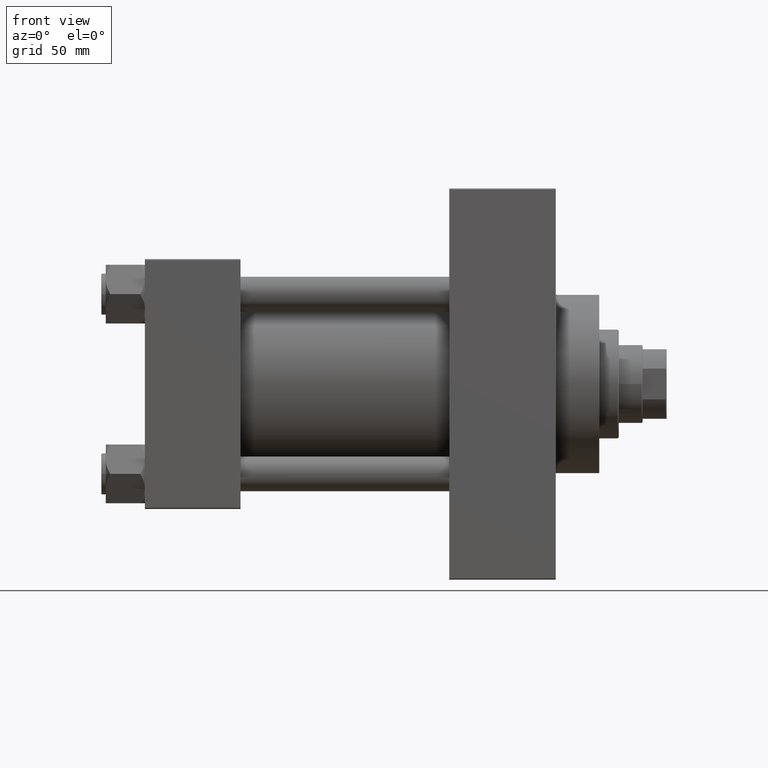
[diagram: clean part render]
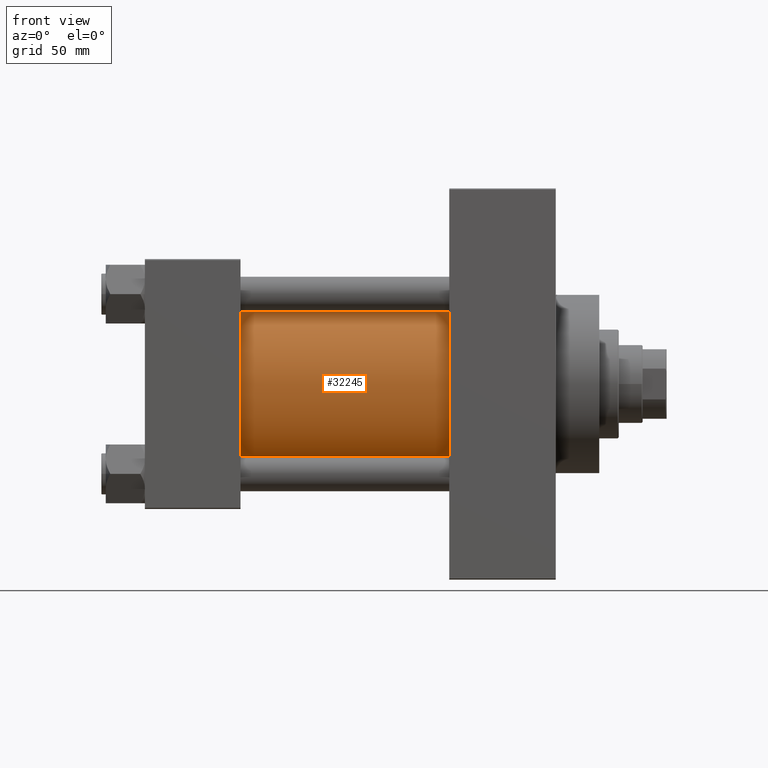
[diagram: same view with one face highlighted and labeled with its STEP entity id]
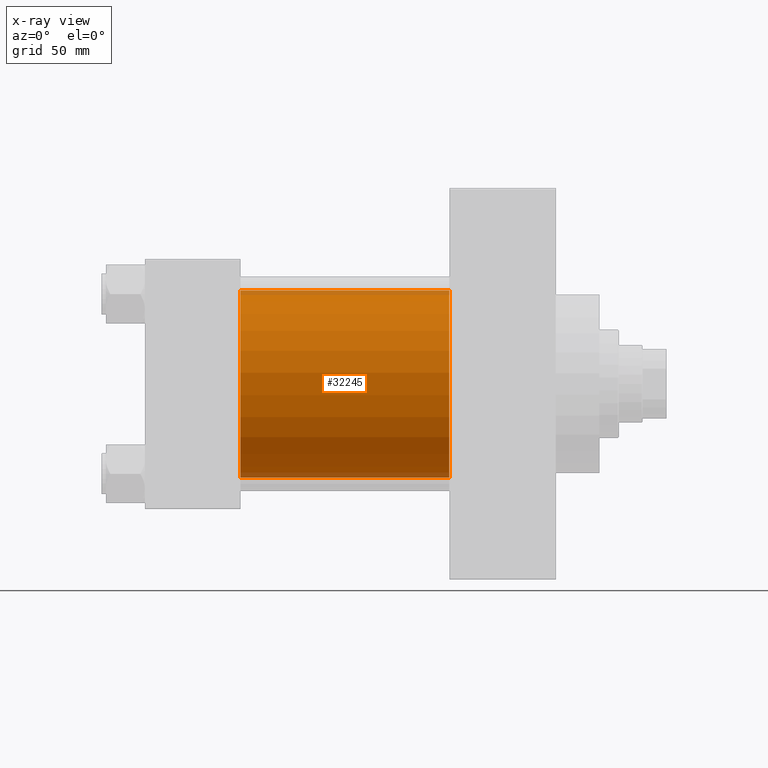
[diagram: x-ray of the same camera — body ghosted, the highlighted face saturated]
A machine part, front view. The second image highlights one B-rep face of the part: STEP entity #32245.
The next image is the same camera in x-ray: the body ghosted, the highlighted face saturated — about 5% of this face is hidden behind the body in this view.
In plain terms, the highlighted cylindrical surface (partial cylindrical patch) has radius 43 mm, axis along (-1, -0, -0).
Its self-contained STEP definition (entity closure, byte-faithful):
#359 = CARTESIAN_POINT ( 'NONE',  ( 44.00000000000000000, 2.663896022368408223E-15, -43.00000000000000000 ) ) ;
#367 = VERTEX_POINT ( 'NONE', #15809 ) ;
#3425 = CIRCLE ( 'NONE', #29563, 43.00000000000000000 ) ;
#3989 = ORIENTED_EDGE ( 'NONE', *, *, #21772, .F. ) ;
#4958 = LINE ( 'NONE', #45675, #34745 ) ;
#6182 = CARTESIAN_POINT ( 'NONE',  ( 140.0000000000000000, -2.602085213965210642E-15, 0.000000000000000000 ) ) ;
#6684 = CYLINDRICAL_SURFACE ( 'NONE', #36775, 43.00000000000000000 ) ;
#7152 = VECTOR ( 'NONE', #27373, 1000.000000000000000 ) ;
#7382 = CIRCLE ( 'NONE', #40449, 43.00000000000000000 ) ;
#9587 = ORIENTED_EDGE ( 'NONE', *, *, #25122, .T. ) ;
#12470 = DIRECTION ( 'NONE',  ( 1.000000000000000000, 0.000000000000000000, 0.000000000000000000 ) ) ;
#14166 = DIRECTION ( 'NONE',  ( -1.000000000000000000, -0.000000000000000000, -0.000000000000000000 ) ) ;
#15809 = CARTESIAN_POINT ( 'NONE',  ( 140.0000000000000000, 2.663896022368408223E-15, -43.00000000000000000 ) ) ;
#17029 = CARTESIAN_POINT ( 'NONE',  ( 140.0000000000000000, -2.602085213965210642E-15, 43.00000000000000000 ) ) ;
#18014 = DIRECTION ( 'NONE',  ( 0.000000000000000000, 0.000000000000000000, 1.000000000000000000 ) ) ;
#18366 = VERTEX_POINT ( 'NONE', #38947 ) ;
#18371 = EDGE_CURVE ( 'NONE', #22805, #18366, #20864, .T. ) ;
#20864 = LINE ( 'NONE', #17029, #7152 ) ;
#21123 = ORIENTED_EDGE ( 'NONE', *, *, #18371, .T. ) ;
#21772 = EDGE_CURVE ( 'NONE', #22805, #367, #3425, .T. ) ;
#22805 = VERTEX_POINT ( 'NONE', #39685 ) ;
#25122 = EDGE_CURVE ( 'NONE', #18366, #43341, #7382, .T. ) ;
#25217 = CARTESIAN_POINT ( 'NONE',  ( 140.0000000000000000, -2.602085213965210642E-15, 0.000000000000000000 ) ) ;
#25925 = FACE_OUTER_BOUND ( 'NONE', #38062, .T. ) ;
#27373 = DIRECTION ( 'NONE',  ( -1.000000000000000000, -0.000000000000000000, -0.000000000000000000 ) ) ;
#28833 = DIRECTION ( 'NONE',  ( 1.000000000000000000, -0.000000000000000000, 0.000000000000000000 ) ) ;
#29563 = AXIS2_PLACEMENT_3D ( 'NONE', #6182, #12470, #31246 ) ;
#31246 = DIRECTION ( 'NONE',  ( 0.000000000000000000, 0.000000000000000000, -1.000000000000000000 ) ) ;
#32245 = ADVANCED_FACE ( 'NONE', ( #25925 ), #6684, .T. ) ;
#34373 = DIRECTION ( 'NONE',  ( -1.000000000000000000, -0.000000000000000000, -0.000000000000000000 ) ) ;
#34745 = VECTOR ( 'NONE', #34373, 1000.000000000000000 ) ;
#36775 = AXIS2_PLACEMENT_3D ( 'NONE', #25217, #14166, #18014 ) ;
#38062 = EDGE_LOOP ( 'NONE', ( #42353, #3989, #21123, #9587 ) ) ;
#38947 = CARTESIAN_POINT ( 'NONE',  ( 44.00000000000000000, -2.602085213965210642E-15, 43.00000000000000000 ) ) ;
#39685 = CARTESIAN_POINT ( 'NONE',  ( 140.0000000000000000, -2.602085213965210642E-15, 43.00000000000000000 ) ) ;
#40449 = AXIS2_PLACEMENT_3D ( 'NONE', #47135, #28833, #46891 ) ;
#42353 = ORIENTED_EDGE ( 'NONE', *, *, #43566, .F. ) ;
#43341 = VERTEX_POINT ( 'NONE', #359 ) ;
#43566 = EDGE_CURVE ( 'NONE', #367, #43341, #4958, .T. ) ;
#45675 = CARTESIAN_POINT ( 'NONE',  ( 140.0000000000000000, 2.663896022368408223E-15, -43.00000000000000000 ) ) ;
#46891 = DIRECTION ( 'NONE',  ( 0.000000000000000000, 0.000000000000000000, 1.000000000000000000 ) ) ;
#47135 = CARTESIAN_POINT ( 'NONE',  ( 44.00000000000000000, -2.602085213965210642E-15, 0.000000000000000000 ) ) ;